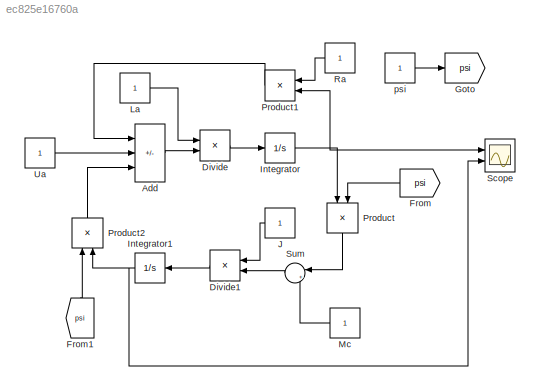
MODEL slx_ec825e16760a
KIND model
CONFIG AbsTol = auto
CONFIG EnableMultiTasking = off
CONFIG FixedStep = auto
CONFIG MaxStep = auto
CONFIG MinStep = auto
CONFIG RelTol = 1e-3
CONFIG SampleTimeConstraint = Unconstrained
CONFIG SolverName = VariableStepAuto
CONFIG StartTime = 0.0
CONFIG StopTime = 10.0
BLOCK [Sum] Add
  IconShape = rectangular
  Inputs = -+-
  Ports = [3, 1]
BLOCK [Product] Divide
  Inputs = */
  Ports = [2, 1]
BLOCK [Product] Divide1
  Inputs = */
  NameLocation = top
  Ports = [2, 1]
BLOCK [From] From
  GotoTag = psi
  NameLocation = top
BLOCK [From] From1
  GotoTag = psi
  NameLocation = right
BLOCK [Goto] Goto
  GotoTag = psi
BLOCK [Integrator] Integrator
  Ports = [1, 1]
BLOCK [Integrator] Integrator1
  NameLocation = top
  Ports = [1, 1]
BLOCK [Constant] J
  NameLocation = top
BLOCK [Constant] La
BLOCK [Constant] Mc
  NameLocation = top
BLOCK [Product] Product
  NameLocation = left
  Ports = [2, 1]
BLOCK [Product] Product1
  NameLocation = top
  Ports = [2, 1]
BLOCK [Product] Product2
  NameLocation = right
  Ports = [2, 1]
BLOCK [Constant] Ra
  NameLocation = top
BLOCK [Scope] Scope
  Floating = off
  NumInputPorts = 2
  Ports = [2]
  ScopeSpecificationString = Simulink.scopes.TimeScopeBlockCfg('CurrentConfiguration', extmgr.ConfigurationSet(extmgr.Configuration('Core','General UI',true),extmgr.Configuration('Core','Source UI',true),extmgr.Configuration('Sources','WiredSimulink',true),extmgr.Configuration('Visuals','Time Domain',true,'SerializedDisplays',{struct('MinYLimReal','-10','MaxYLimReal','10','YLabelReal','','MinYLimMag','0','MaxYLimMag','10','Le...<+1311ch>
BLOCK [Sum] Sum
  Inputs = |++
  NameLocation = top
  Ports = [2, 1]
BLOCK [Constant] Ua
BLOCK [Constant] psi
LINE Add:1 -> Divide:2
LINE Divide1:1 -> Integrator1:1
LINE Divide:1 -> Integrator:1
LINE From1:1 -> Product2:1
LINE From:1 -> Product:2
NET Integrator1:1 -> Product2:2, Scope:2
NET Integrator:1 -> Product1:2, Product:1, Scope:1
LINE J:1 -> Divide1:1
LINE La:1 -> Divide:1
LINE Mc:1 -> Sum:2
LINE Product1:1 -> Add:1
LINE Product2:1 -> Add:3
LINE Product:1 -> Sum:1
LINE Ra:1 -> Product1:1
LINE Sum:1 -> Divide1:2
LINE Ua:1 -> Add:2
LINE psi:1 -> Goto:1
note: NET lines group one-source signal fan-out (src -> all destinations, sorted); 1:1 wires keep LINE
